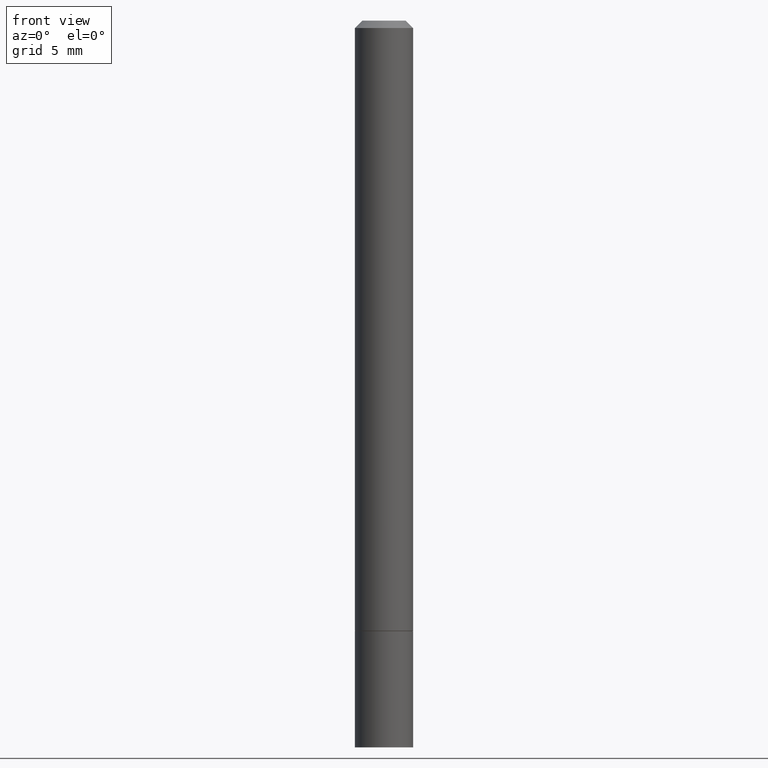
[diagram: clean part render]
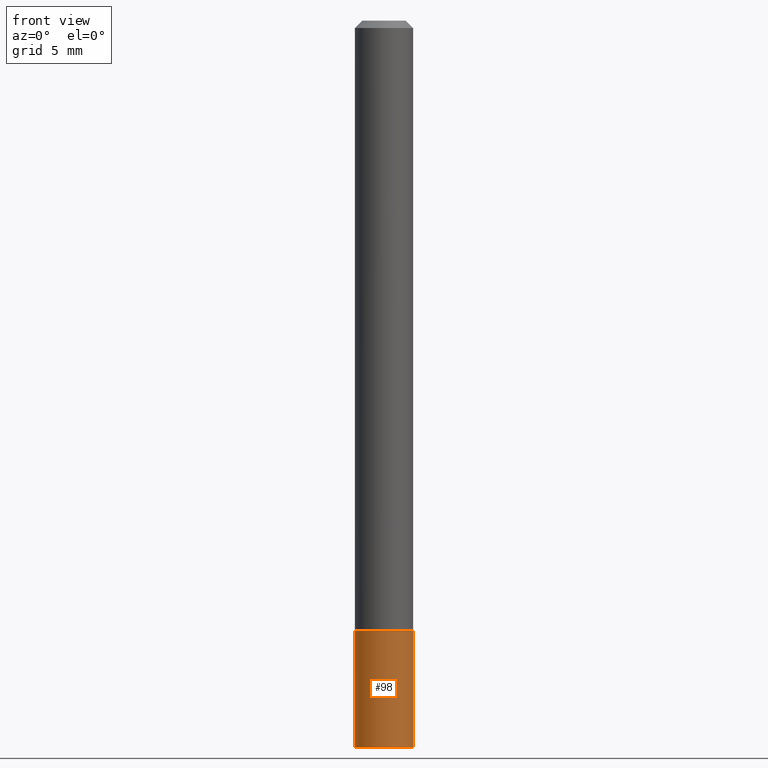
[diagram: same view with one face highlighted and labeled with its STEP entity id]
A machine part, front view. The second image highlights one B-rep face of the part: STEP entity #98.
In plain terms, the highlighted cylindrical surface (edge-blend (fillet) strip) has radius 2.0002 mm, axis along (-0, 0, 1).
Its self-contained STEP definition (entity closure, byte-faithful):
#47 = EDGE_CURVE ( 'NONE', #350, #51, #164, .T. ) ;
#49 = ORIENTED_EDGE ( 'NONE', *, *, #351, .T. ) ;
#51 = VERTEX_POINT ( 'NONE', #268 ) ;
#52 = ORIENTED_EDGE ( 'NONE', *, *, #216, .F. ) ;
#62 = CARTESIAN_POINT ( 'NONE',  ( -0.07875000000000000056, 5.595524044110789003E-16, -3.873661383575737792E-30 ) ) ;
#77 = CYLINDRICAL_SURFACE ( 'NONE', #141, 0.07875000000000000056 ) ;
#90 = LINE ( 'NONE', #62, #199 ) ;
#98 = ADVANCED_FACE ( 'NONE', ( #99 ), #77, .T. ) ;
#99 = FACE_OUTER_BOUND ( 'NONE', #356, .T. ) ;
#101 = CARTESIAN_POINT ( 'NONE',  ( 0.07875000000000000056, -7.422889326380525053E-15, -1.968500000000000139 ) ) ;
#103 = VERTEX_POINT ( 'NONE', #297 ) ;
#131 = DIRECTION ( 'NONE',  ( -2.445468806185136597E-29, 3.491481338843145583E-15, 1.000000000000000000 ) ) ;
#141 = AXIS2_PLACEMENT_3D ( 'NONE', #325, #189, #269 ) ;
#143 = DIRECTION ( 'NONE',  ( 1.000000000000000000, -6.982962677686261977E-15, 0.000000000000000000 ) ) ;
#155 = CIRCLE ( 'NONE', #168, 0.07875000000000000056 ) ;
#164 = LINE ( 'NONE', #335, #208 ) ;
#168 = AXIS2_PLACEMENT_3D ( 'NONE', #217, #131, #238 ) ;
#176 = CARTESIAN_POINT ( 'NONE',  ( 4.043582671027123201E-29, -5.773164393777141072E-15, -1.653499999999999970 ) ) ;
#179 = CARTESIAN_POINT ( 'NONE',  ( -0.07875000000000000056, -5.763520300233858771E-15, -1.968500000000000139 ) ) ;
#189 = DIRECTION ( 'NONE',  ( -2.445468806185136597E-29, 3.491481338843145583E-15, 1.000000000000000000 ) ) ;
#194 = AXIS2_PLACEMENT_3D ( 'NONE', #176, #310, #143 ) ;
#199 = VECTOR ( 'NONE', #202, 39.37007874015748143 ) ;
#200 = EDGE_CURVE ( 'NONE', #235, #103, #90, .T. ) ;
#202 = DIRECTION ( 'NONE',  ( -2.445468806185136877E-29, 3.491481338843145188E-15, 1.000000000000000000 ) ) ;
#208 = VECTOR ( 'NONE', #296, 39.37007874015748143 ) ;
#216 = EDGE_CURVE ( 'NONE', #103, #51, #266, .T. ) ;
#217 = CARTESIAN_POINT ( 'NONE',  ( 4.813905344975441835E-29, -6.872981015512731707E-15, -1.968500000000000139 ) ) ;
#235 = VERTEX_POINT ( 'NONE', #179 ) ;
#238 = DIRECTION ( 'NONE',  ( 1.000000000000000000, -6.982962677686261977E-15, 0.000000000000000000 ) ) ;
#266 = CIRCLE ( 'NONE', #194, 0.07875000000000000056 ) ;
#268 = CARTESIAN_POINT ( 'NONE',  ( 0.07875000000000000056, -6.323072704644934417E-15, -1.653499999999999970 ) ) ;
#269 = DIRECTION ( 'NONE',  ( 1.000000000000000000, -6.982962677686265922E-15, 4.876176775795935232E-29 ) ) ;
#296 = DIRECTION ( 'NONE',  ( -2.445468806185136877E-29, 3.491481338843145188E-15, 1.000000000000000000 ) ) ;
#297 = CARTESIAN_POINT ( 'NONE',  ( -0.07875000000000000056, -5.763520300233858771E-15, -1.653499999999999970 ) ) ;
#310 = DIRECTION ( 'NONE',  ( -2.445468806185136597E-29, 3.491481338843145583E-15, 1.000000000000000000 ) ) ;
#325 = CARTESIAN_POINT ( 'NONE',  ( 0.000000000000000000, 0.000000000000000000, 0.000000000000000000 ) ) ;
#330 = ORIENTED_EDGE ( 'NONE', *, *, #47, .T. ) ;
#335 = CARTESIAN_POINT ( 'NONE',  ( 0.07875000000000000056, -5.499083108677934443E-16, 3.839989210939299016E-30 ) ) ;
#347 = ORIENTED_EDGE ( 'NONE', *, *, #200, .F. ) ;
#350 = VERTEX_POINT ( 'NONE', #101 ) ;
#351 = EDGE_CURVE ( 'NONE', #235, #350, #155, .T. ) ;
#356 = EDGE_LOOP ( 'NONE', ( #347, #49, #330, #52 ) ) ;